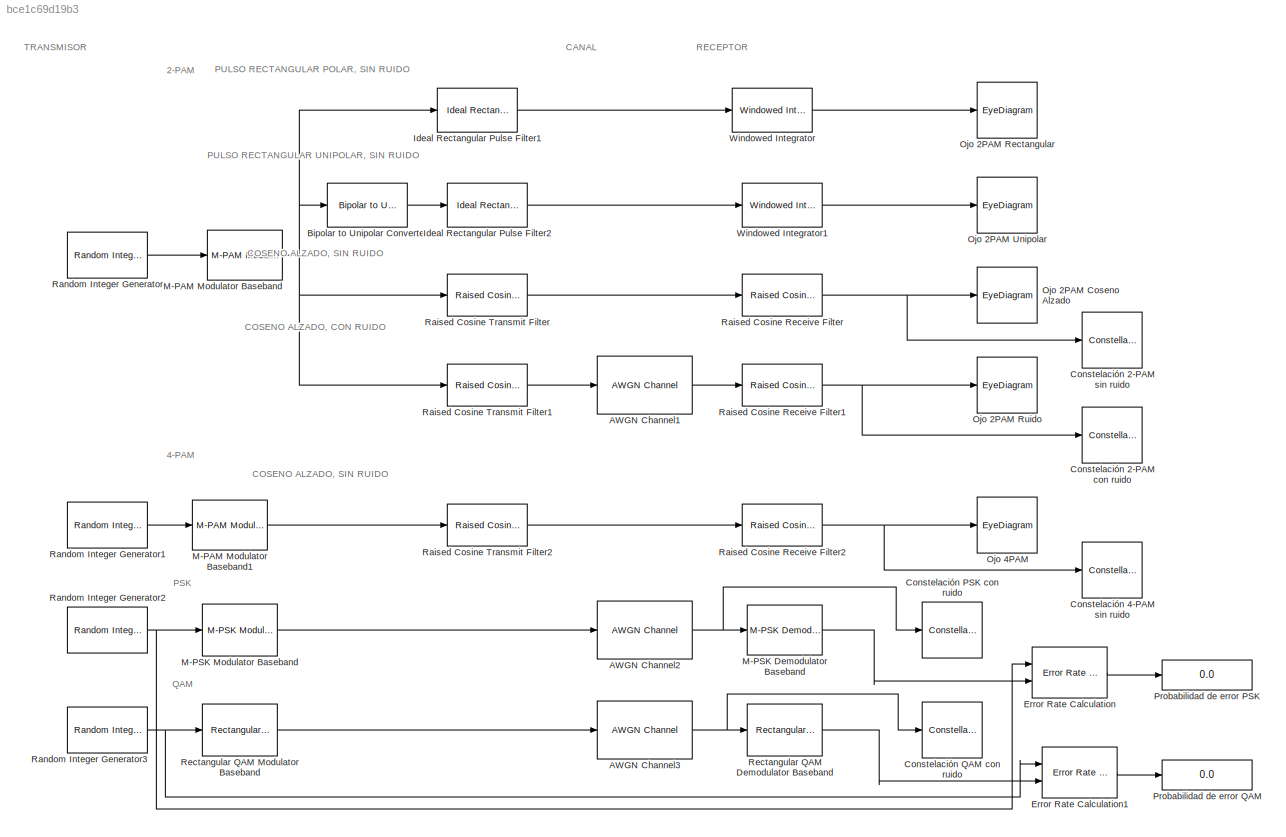
MODEL slx_bce1c69d19b3
KIND model
CONFIG AbsTol = auto
CONFIG EnableMultiTasking = off
CONFIG FixedStep = auto
CONFIG MaxStep = auto
CONFIG MinStep = auto
CONFIG RelTol = 1e-3
CONFIG SampleTimeConstraint = Unconstrained
CONFIG SolverName = VariableStepAuto
CONFIG StartTime = 0.0
CONFIG StopTime = Inf
BLOCK [Reference] AWGN Channel1  REF=commchan3/AWGN
Channel
  Ports = [1, 1]
  SourceBlock = commchan3/AWGN\nChannel
  SourceProductBaseCode = CM
  SourceType = AWGN Channel
  UserDataPersistent = on
BLOCK [Reference] AWGN Channel2  REF=commchan3/AWGN
Channel
  Ports = [1, 1]
  SourceBlock = commchan3/AWGN\nChannel
  SourceProductBaseCode = CM
  SourceType = AWGN Channel
  UserDataPersistent = on
BLOCK [Reference] AWGN Channel3  REF=commchan3/AWGN
Channel
  Ports = [1, 1]
  SourceBlock = commchan3/AWGN\nChannel
  SourceProductBaseCode = CM
  SourceType = AWGN Channel
  UserDataPersistent = on
BLOCK [Reference] Bipolar to Unipolar Converter  REF=commutil2/Bipolar to
Unipolar
Converter
  Ports = [1, 1]
  SourceBlock = commutil2/Bipolar to\nUnipolar\nConverter
  SourceProductBaseCode = CM
  SourceType = Bipolar to Unipolar Converter
BLOCK [ConstellationDiagram] Constelación 2-PAM con ruido
  Ports = [1]
  ScopeSpecificationString = comm.scopes.ConstellationDiagramBlockCfg('CurrentConfiguration', extmgr.ConfigurationSet(extmgr.Configuration('Core','General UI',true),extmgr.Configuration('Core','Source UI',true),extmgr.Configuration('Sources','WiredSimulink',true),extmgr.Configuration('Sources','SPTool',false),extmgr.Configuration('Sources','File',false),extmgr.Configuration('Sources','Workspace',false),extmgr.Configuration('S...<+2527ch>
BLOCK [ConstellationDiagram] Constelación 2-PAM sin ruido
  Ports = [1]
  ScopeSpecificationString = comm.scopes.ConstellationDiagramBlockCfg('CurrentConfiguration', extmgr.ConfigurationSet(extmgr.Configuration('Core','General UI',true),extmgr.Configuration('Core','Source UI',true),extmgr.Configuration('Sources','WiredSimulink',true),extmgr.Configuration('Sources','SPTool',false),extmgr.Configuration('Sources','File',false),extmgr.Configuration('Sources','Workspace',false),extmgr.Configuration('S...<+2527ch>
BLOCK [ConstellationDiagram] Constelación 4-PAM sin ruido
  Ports = [1]
  ScopeSpecificationString = comm.scopes.ConstellationDiagramBlockCfg('CurrentConfiguration', extmgr.ConfigurationSet(extmgr.Configuration('Core','General UI',true),extmgr.Configuration('Core','Source UI',true),extmgr.Configuration('Sources','WiredSimulink',true),extmgr.Configuration('Sources','SPTool',false),extmgr.Configuration('Sources','File',false),extmgr.Configuration('Sources','Workspace',false),extmgr.Configuration('S...<+2564ch>
BLOCK [ConstellationDiagram] Constelación PSK con ruido
  Ports = [1]
  ScopeSpecificationString = comm.scopes.ConstellationDiagramBlockCfg('CurrentConfiguration', extmgr.ConfigurationSet(extmgr.Configuration('Core','General UI',true),extmgr.Configuration('Core','Source UI',true),extmgr.Configuration('Sources','WiredSimulink',true),extmgr.Configuration('Sources','SPTool',false),extmgr.Configuration('Sources','File',false),extmgr.Configuration('Sources','Workspace',false),extmgr.Configuration('S...<+2531ch>
BLOCK [ConstellationDiagram] Constelación QAM con ruido
  Ports = [1]
  ScopeSpecificationString = comm.scopes.ConstellationDiagramBlockCfg('CurrentConfiguration', extmgr.ConfigurationSet(extmgr.Configuration('Core','General UI',true),extmgr.Configuration('Core','Source UI',true),extmgr.Configuration('Sources','WiredSimulink',true),extmgr.Configuration('Sources','SPTool',false),extmgr.Configuration('Sources','File',false),extmgr.Configuration('Sources','Workspace',false),extmgr.Configuration('S...<+2529ch>
BLOCK [Reference] Error Rate Calculation  REF=commsink2/Error Rate
Calculation
  Ports = [2, 1]
  SourceBlock = commsink2/Error Rate\nCalculation
  SourceProductBaseCode = CM
  SourceType = Error Rate Calculation
BLOCK [Reference] Error Rate Calculation1  REF=commsink2/Error Rate
Calculation
  Ports = [2, 1]
  SourceBlock = commsink2/Error Rate\nCalculation
  SourceProductBaseCode = CM
  SourceType = Error Rate Calculation
BLOCK [Reference] Ideal Rectangular Pulse Filter1  REF=commfilt2/Ideal Rectangular
Pulse Filter
  Ports = [1, 1]
  SourceBlock = commfilt2/Ideal Rectangular\nPulse Filter
  SourceProductBaseCode = CM
  SourceType = Ideal Rectangular Pulse Filter
  UserDataPersistent = on
BLOCK [Reference] Ideal Rectangular Pulse Filter2  REF=commfilt2/Ideal Rectangular
Pulse Filter
  Ports = [1, 1]
  SourceBlock = commfilt2/Ideal Rectangular\nPulse Filter
  SourceProductBaseCode = CM
  SourceType = Ideal Rectangular Pulse Filter
  UserDataPersistent = on
BLOCK [Reference] M-PAM Modulator Baseband  REF=commdigbbndam3/M-PAM
Modulator
Baseband
  Ports = [1, 1]
  SourceBlock = commdigbbndam3/M-PAM\nModulator\nBaseband
  SourceProductBaseCode = CM
  SourceType = M-PAM Modulator Baseband
BLOCK [Reference] M-PAM Modulator Baseband1  REF=commdigbbndam3/M-PAM
Modulator
Baseband
  Ports = [1, 1]
  SourceBlock = commdigbbndam3/M-PAM\nModulator\nBaseband
  SourceProductBaseCode = CM
  SourceType = M-PAM Modulator Baseband
BLOCK [Reference] M-PSK Demodulator Baseband  REF=commdigbbndpm3/M-PSK
Demodulator
Baseband
  Ports = [1, 1]
  SourceBlock = commdigbbndpm3/M-PSK\nDemodulator\nBaseband
  SourceProductBaseCode = CM
  SourceType = M-PSK Demodulator Baseband
BLOCK [Reference] M-PSK Modulator Baseband  REF=commdigbbndpm3/M-PSK
Modulator
Baseband
  Ports = [1, 1]
  SourceBlock = commdigbbndpm3/M-PSK\nModulator\nBaseband
  SourceProductBaseCode = CM
  SourceType = M-PSK Modulator Baseband
BLOCK [EyeDiagram] Ojo 2PAM Coseno Alzado
  Ports = [1]
  ScopeSpecificationString = comm.scopes.EyeDiagramBlockCfg('CurrentConfiguration', extmgr.ConfigurationSet(extmgr.Configuration('Core','General UI',true),extmgr.Configuration('Core','Source UI',true),extmgr.Configuration('Sources','WiredSimulink',true),extmgr.Configuration('Sources','Simulink',false),extmgr.Configuration('Sources','File',false),extmgr.Configuration('Sources','Workspace',false),extmgr.Configuration('Sources',...<+2092ch>
BLOCK [EyeDiagram] Ojo 2PAM Rectangular
  Ports = [1]
  ScopeSpecificationString = comm.scopes.EyeDiagramBlockCfg('CurrentConfiguration', extmgr.ConfigurationSet(extmgr.Configuration('Core','General UI',true),extmgr.Configuration('Core','Source UI',true),extmgr.Configuration('Sources','WiredSimulink',true),extmgr.Configuration('Sources','Simulink',false),extmgr.Configuration('Sources','File',false),extmgr.Configuration('Sources','Workspace',false),extmgr.Configuration('Sources',...<+2090ch>
BLOCK [EyeDiagram] Ojo 2PAM Ruido
  Ports = [1]
  ScopeSpecificationString = comm.scopes.EyeDiagramBlockCfg('CurrentConfiguration', extmgr.ConfigurationSet(extmgr.Configuration('Core','General UI',true),extmgr.Configuration('Core','Source UI',true),extmgr.Configuration('Sources','WiredSimulink',true),extmgr.Configuration('Sources','Simulink',false),extmgr.Configuration('Sources','File',false),extmgr.Configuration('Sources','Workspace',false),extmgr.Configuration('Sources',...<+2091ch>
BLOCK [EyeDiagram] Ojo 2PAM Unipolar
  Ports = [1]
  ScopeSpecificationString = comm.scopes.EyeDiagramBlockCfg('CurrentConfiguration', extmgr.ConfigurationSet(extmgr.Configuration('Core','General UI',true),extmgr.Configuration('Core','Source UI',true),extmgr.Configuration('Sources','WiredSimulink',true),extmgr.Configuration('Sources','Simulink',false),extmgr.Configuration('Sources','File',false),extmgr.Configuration('Sources','Workspace',false),extmgr.Configuration('Sources',...<+2091ch>
BLOCK [EyeDiagram] Ojo 4PAM
  Ports = [1]
  ScopeSpecificationString = comm.scopes.EyeDiagramBlockCfg('CurrentConfiguration', extmgr.ConfigurationSet(extmgr.Configuration('Core','General UI',true),extmgr.Configuration('Core','Source UI',true),extmgr.Configuration('Sources','WiredSimulink',true),extmgr.Configuration('Sources','Simulink',false),extmgr.Configuration('Sources','File',false),extmgr.Configuration('Sources','Workspace',false),extmgr.Configuration('Sources',...<+2092ch>
BLOCK [Display] Probabilidad de error PSK
  Decimation = 1
  Ports = [1]
BLOCK [Display] Probabilidad de error QAM
  Decimation = 1
  Ports = [1]
BLOCK [Reference] Raised Cosine Receive Filter  REF=commfilt2/Raised Cosine
Receive Filter
  Ports = [1, 1]
  SourceBlock = commfilt2/Raised Cosine\nReceive Filter
  SourceProductBaseCode = CM
  SourceType = Raised Cosine Receive Filter
BLOCK [Reference] Raised Cosine Receive Filter1  REF=commfilt2/Raised Cosine
Receive Filter
  Ports = [1, 1]
  SourceBlock = commfilt2/Raised Cosine\nReceive Filter
  SourceProductBaseCode = CM
  SourceType = Raised Cosine Receive Filter
BLOCK [Reference] Raised Cosine Receive Filter2  REF=commfilt2/Raised Cosine
Receive Filter
  Ports = [1, 1]
  SourceBlock = commfilt2/Raised Cosine\nReceive Filter
  SourceProductBaseCode = CM
  SourceType = Raised Cosine Receive Filter
BLOCK [Reference] Raised Cosine Transmit Filter  REF=commfilt2/Raised Cosine
Transmit Filter
  Ports = [1, 1]
  SourceBlock = commfilt2/Raised Cosine\nTransmit Filter
  SourceProductBaseCode = CM
  SourceType = Raised Cosine Transmit Filter
BLOCK [Reference] Raised Cosine Transmit Filter1  REF=commfilt2/Raised Cosine
Transmit Filter
  Ports = [1, 1]
  SourceBlock = commfilt2/Raised Cosine\nTransmit Filter
  SourceProductBaseCode = CM
  SourceType = Raised Cosine Transmit Filter
BLOCK [Reference] Raised Cosine Transmit Filter2  REF=commfilt2/Raised Cosine
Transmit Filter
  Ports = [1, 1]
  SourceBlock = commfilt2/Raised Cosine\nTransmit Filter
  SourceProductBaseCode = CM
  SourceType = Raised Cosine Transmit Filter
BLOCK [Reference] Random Integer Generator  REF=commrandsrc3/Random Integer
Generator
  Ports = [0, 1]
  SourceBlock = commrandsrc3/Random Integer\nGenerator
  SourceProductBaseCode = CM
  SourceType = Random Integer Generator
BLOCK [Reference] Random Integer Generator1  REF=commrandsrc3/Random Integer
Generator
  Ports = [0, 1]
  SourceBlock = commrandsrc3/Random Integer\nGenerator
  SourceProductBaseCode = CM
  SourceType = Random Integer Generator
BLOCK [Reference] Random Integer Generator2  REF=commrandsrc3/Random Integer
Generator
  Ports = [0, 1]
  SourceBlock = commrandsrc3/Random Integer\nGenerator
  SourceProductBaseCode = CM
  SourceType = Random Integer Generator
BLOCK [Reference] Random Integer Generator3  REF=commrandsrc3/Random Integer
Generator
  Ports = [0, 1]
  SourceBlock = commrandsrc3/Random Integer\nGenerator
  SourceProductBaseCode = CM
  SourceType = Random Integer Generator
BLOCK [Reference] Rectangular QAM Demodulator Baseband  REF=commdigbbndam3/Rectangular QAM
Demodulator
Baseband
  Ports = [1, 1]
  SourceBlock = commdigbbndam3/Rectangular QAM\nDemodulator\nBaseband
  SourceProductBaseCode = CM
  SourceType = Rectangular QAM Demodulator Baseband
BLOCK [Reference] Rectangular QAM Modulator Baseband  REF=commdigbbndam3/Rectangular QAM
Modulator
Baseband
  Ports = [1, 1]
  SourceBlock = commdigbbndam3/Rectangular QAM\nModulator\nBaseband
  SourceProductBaseCode = CM
  SourceType = Rectangular QAM Modulator Baseband
BLOCK [Reference] Windowed Integrator  REF=commfilt2/Windowed
Integrator
  Ports = [1, 1]
  SourceBlock = commfilt2/Windowed\nIntegrator
  SourceProductBaseCode = CM
  SourceType = Windowed Integrator
  UserDataPersistent = on
BLOCK [Reference] Windowed Integrator1  REF=commfilt2/Windowed
Integrator
  Ports = [1, 1]
  SourceBlock = commfilt2/Windowed\nIntegrator
  SourceProductBaseCode = CM
  SourceType = Windowed Integrator
  UserDataPersistent = on
ANNOTATION (root): 2-PAM
ANNOTATION (root): 4-PAM
ANNOTATION (root): CANAL
ANNOTATION (root): COSENO ALZADO, CON RUIDO
ANNOTATION (root): COSENO ALZADO, SIN RUIDO
ANNOTATION (root): PSK
ANNOTATION (root): PULSO RECTANGULAR POLAR, SIN RUIDO
ANNOTATION (root): PULSO RECTANGULAR UNIPOLAR, SIN RUIDO
ANNOTATION (root): QAM
ANNOTATION (root): RECEPTOR
ANNOTATION (root): TRANSMISOR
LINE AWGN Channel1:1 -> Raised Cosine Receive Filter1:1
NET AWGN Channel2:1 -> Constelación PSK con ruido:1, M-PSK Demodulator Baseband:1
NET AWGN Channel3:1 -> Constelación QAM con ruido:1, Rectangular QAM Demodulator Baseband:1
LINE Bipolar to Unipolar Converter:1 -> Ideal Rectangular Pulse Filter2:1
LINE Error Rate Calculation1:1 -> Probabilidad de error QAM:1
LINE Error Rate Calculation:1 -> Probabilidad de error PSK:1
LINE Ideal Rectangular Pulse Filter1:1 -> Windowed Integrator:1
LINE Ideal Rectangular Pulse Filter2:1 -> Windowed Integrator1:1
LINE M-PAM Modulator Baseband1:1 -> Raised Cosine Transmit Filter2:1
NET M-PAM Modulator Baseband:1 -> Bipolar to Unipolar Converter:1, Ideal Rectangular Pulse Filter1:1, Raised Cosine Transmit Filter1:1, Raised Cosine Transmit Filter:1
LINE M-PSK Demodulator Baseband:1 -> Error Rate Calculation:2
LINE M-PSK Modulator Baseband:1 -> AWGN Channel2:1
NET Raised Cosine Receive Filter1:1 -> Constelación 2-PAM con ruido:1, Ojo 2PAM Ruido:1
NET Raised Cosine Receive Filter2:1 -> Constelación 4-PAM sin ruido:1, Ojo 4PAM:1
NET Raised Cosine Receive Filter:1 -> Constelación 2-PAM sin ruido:1, Ojo 2PAM Coseno Alzado:1
LINE Raised Cosine Transmit Filter1:1 -> AWGN Channel1:1
LINE Raised Cosine Transmit Filter2:1 -> Raised Cosine Receive Filter2:1
LINE Raised Cosine Transmit Filter:1 -> Raised Cosine Receive Filter:1
LINE Random Integer Generator1:1 -> M-PAM Modulator Baseband1:1
NET Random Integer Generator2:1 -> Error Rate Calculation:1, M-PSK Modulator Baseband:1
NET Random Integer Generator3:1 -> Error Rate Calculation1:1, Rectangular QAM Modulator Baseband:1
LINE Random Integer Generator:1 -> M-PAM Modulator Baseband:1
LINE Rectangular QAM Demodulator Baseband:1 -> Error Rate Calculation1:2
LINE Rectangular QAM Modulator Baseband:1 -> AWGN Channel3:1
LINE Windowed Integrator1:1 -> Ojo 2PAM Unipolar:1
LINE Windowed Integrator:1 -> Ojo 2PAM Rectangular:1
note: NET lines group one-source signal fan-out (src -> all destinations, sorted); 1:1 wires keep LINE
